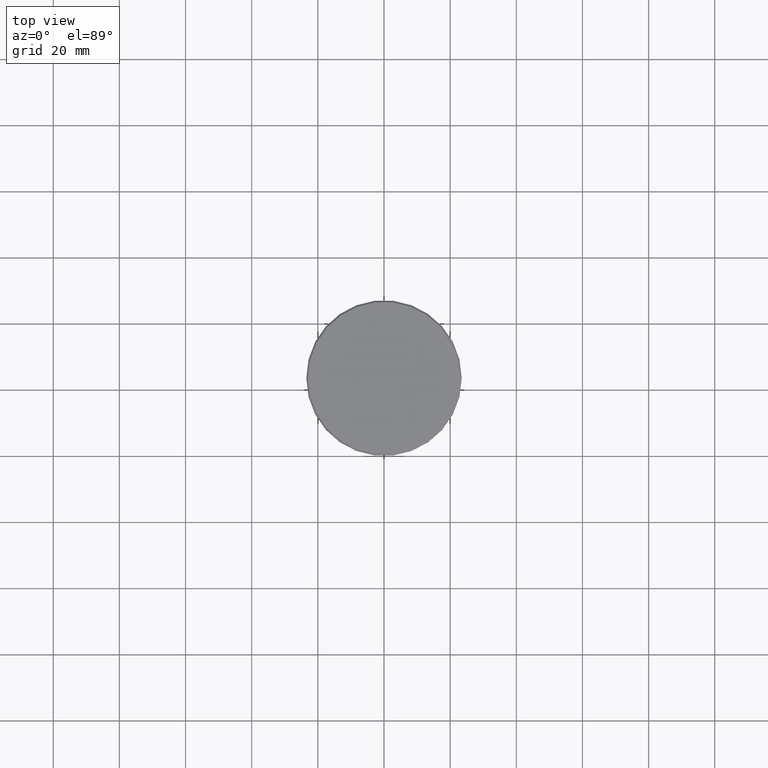
[diagram: clean part render]
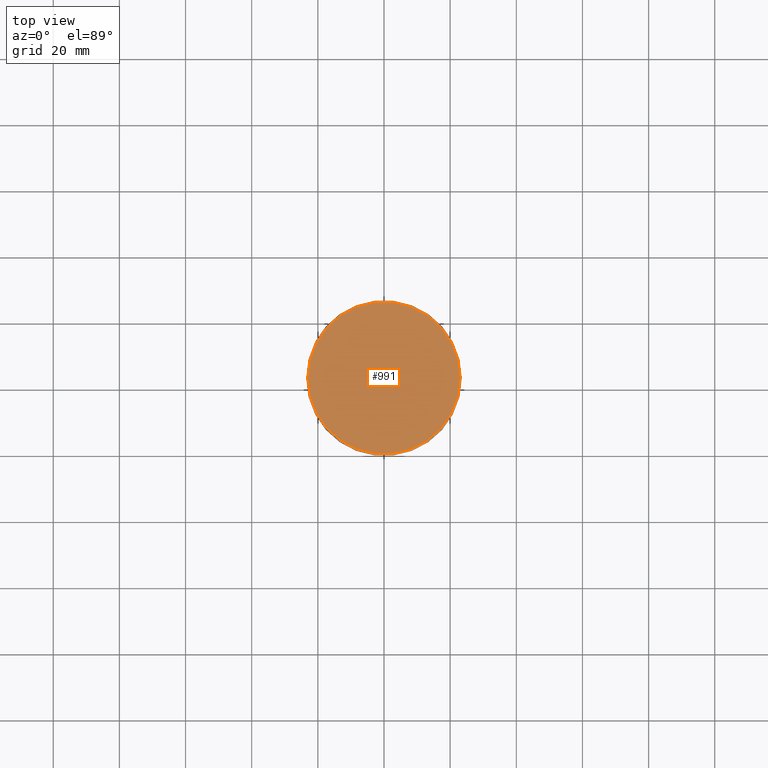
[diagram: same view with one face highlighted and labeled with its STEP entity id]
A machine part, top view. The second image highlights one B-rep face of the part: STEP entity #991.
In plain terms, the highlighted planar face has unit normal (0, -0, 1).
Its self-contained STEP definition (entity closure, byte-faithful):
#32 = VERTEX_POINT ( 'NONE', #742 ) ;
#40 = CARTESIAN_POINT ( 'NONE',  ( 0.000000000000000000, 0.000000000000000000, 0.000000000000000000 ) ) ;
#113 = CARTESIAN_POINT ( 'NONE',  ( 0.000000000000000000, 0.000000000000000000, 0.000000000000000000 ) ) ;
#195 = AXIS2_PLACEMENT_3D ( 'NONE', #216, #582, #948 ) ;
#198 = VERTEX_POINT ( 'NONE', #421 ) ;
#205 = FACE_OUTER_BOUND ( 'NONE', #914, .T. ) ;
#216 = CARTESIAN_POINT ( 'NONE',  ( 0.000000000000000000, 0.000000000000000000, 0.000000000000000000 ) ) ;
#277 = EDGE_CURVE ( 'NONE', #32, #198, #746, .T. ) ;
#284 = DIRECTION ( 'NONE',  ( 0.000000000000000000, -0.000000000000000000, 1.000000000000000000 ) ) ;
#354 = DIRECTION ( 'NONE',  ( 1.000000000000000000, 0.000000000000000000, 0.000000000000000000 ) ) ;
#369 = DIRECTION ( 'NONE',  ( -0.000000000000000000, -0.000000000000000000, 1.000000000000000000 ) ) ;
#421 = CARTESIAN_POINT ( 'NONE',  ( -23.00000000000002487, 0.000000000000000000, 0.000000000000000000 ) ) ;
#467 = PLANE ( 'NONE',  #770 ) ;
#538 = AXIS2_PLACEMENT_3D ( 'NONE', #113, #369, #354 ) ;
#564 = DIRECTION ( 'NONE',  ( 1.000000000000000000, 0.000000000000000000, 0.000000000000000000 ) ) ;
#582 = DIRECTION ( 'NONE',  ( -0.000000000000000000, -0.000000000000000000, 1.000000000000000000 ) ) ;
#742 = CARTESIAN_POINT ( 'NONE',  ( 23.00000000000002487, 2.847303808017597717E-15, 0.000000000000000000 ) ) ;
#746 = CIRCLE ( 'NONE', #538, 23.00000000000002487 ) ;
#770 = AXIS2_PLACEMENT_3D ( 'NONE', #40, #284, #564 ) ;
#792 = EDGE_CURVE ( 'NONE', #198, #32, #920, .T. ) ;
#914 = EDGE_LOOP ( 'NONE', ( #1078, #1083 ) ) ;
#920 = CIRCLE ( 'NONE', #195, 23.00000000000002487 ) ;
#948 = DIRECTION ( 'NONE',  ( 1.000000000000000000, 0.000000000000000000, 0.000000000000000000 ) ) ;
#991 = ADVANCED_FACE ( 'NONE', ( #205 ), #467, .T. ) ;
#1078 = ORIENTED_EDGE ( 'NONE', *, *, #792, .T. ) ;
#1083 = ORIENTED_EDGE ( 'NONE', *, *, #277, .T. ) ;